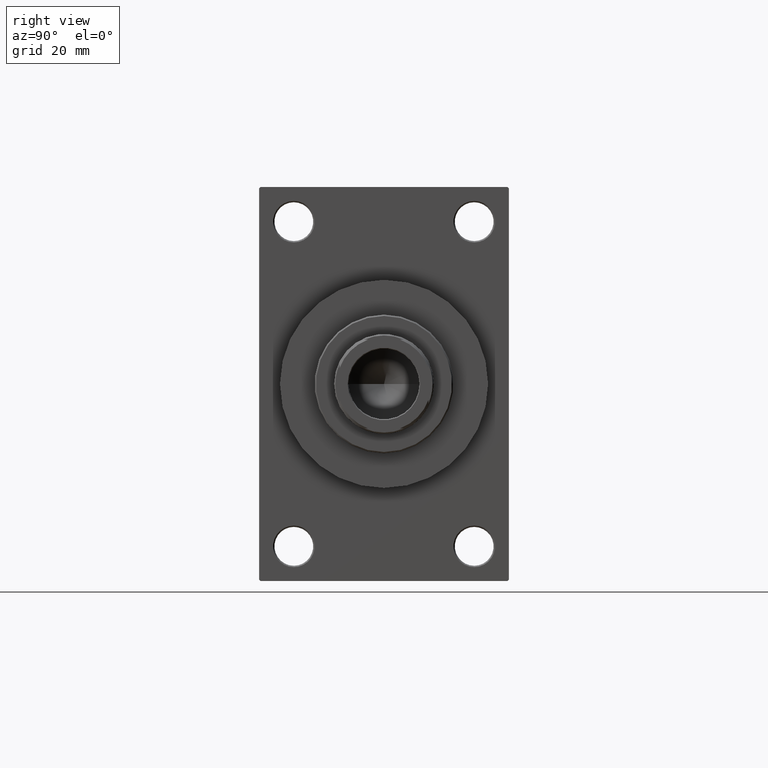
[diagram: clean part render]
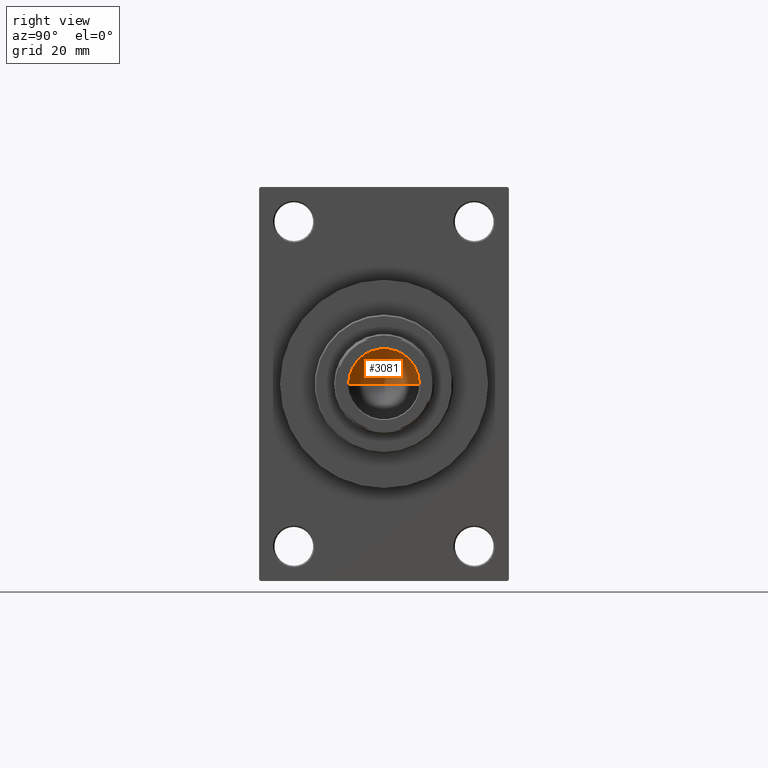
[diagram: same view with one face highlighted and labeled with its STEP entity id]
A machine part, right view. The second image highlights one B-rep face of the part: STEP entity #3081.
In plain terms, the highlighted conical surface has half-angle 59 deg.
Its self-contained STEP definition (entity closure, byte-faithful):
#3081 = ADVANCED_FACE ( 'NONE', ( #9977 ), #36785, .F. ) ;
#3415 = ORIENTED_EDGE ( 'NONE', *, *, #43468, .T. ) ;
#5251 = EDGE_CURVE ( 'NONE', #29894, #9873, #9367, .T. ) ;
#5435 = ORIENTED_EDGE ( 'NONE', *, *, #5251, .T. ) ;
#5481 = CARTESIAN_POINT ( 'NONE',  ( -12.74999999999998934, 1.561424668912873928E-15, 105.0000000000000284 ) ) ;
#6276 = CARTESIAN_POINT ( 'NONE',  ( -1.410643066818227497E-14, 0.000000000000000000, 97.33902710739862130 ) ) ;
#6325 = AXIS2_PLACEMENT_3D ( 'NONE', #42831, #35658, #17519 ) ;
#9367 = CIRCLE ( 'NONE', #6325, 12.74999999999998934 ) ;
#9873 = VERTEX_POINT ( 'NONE', #17779 ) ;
#9977 = FACE_OUTER_BOUND ( 'NONE', #18634, .T. ) ;
#10228 = LINE ( 'NONE', #39367, #26865 ) ;
#15682 = CARTESIAN_POINT ( 'NONE',  ( 12.74999999999998934, 0.000000000000000000, 105.0000000000000284 ) ) ;
#17393 = DIRECTION ( 'NONE',  ( 1.000000000000000000, 0.000000000000000000, 0.000000000000000000 ) ) ;
#17519 = DIRECTION ( 'NONE',  ( 1.000000000000000000, 0.000000000000000000, 0.000000000000000000 ) ) ;
#17779 = CARTESIAN_POINT ( 'NONE',  ( 12.74999999999998934, 0.000000000000000000, 105.0000000000000284 ) ) ;
#18634 = EDGE_LOOP ( 'NONE', ( #27251, #3415, #5435 ) ) ;
#20769 = AXIS2_PLACEMENT_3D ( 'NONE', #24562, #38654, #17393 ) ;
#23339 = DIRECTION ( 'NONE',  ( 0.8571673007021117785, 0.000000000000000000, 0.5150380749100550437 ) ) ;
#24562 = CARTESIAN_POINT ( 'NONE',  ( 0.000000000000000000, 0.000000000000000000, 105.0000000000000284 ) ) ;
#26865 = VECTOR ( 'NONE', #32207, 1000.000000000000000 ) ;
#27251 = ORIENTED_EDGE ( 'NONE', *, *, #34027, .F. ) ;
#29894 = VERTEX_POINT ( 'NONE', #5481 ) ;
#32207 = DIRECTION ( 'NONE',  ( -0.8571673007021117785, 1.049727191138617956E-16, 0.5150380749100550437 ) ) ;
#32438 = VERTEX_POINT ( 'NONE', #6276 ) ;
#34027 = EDGE_CURVE ( 'NONE', #32438, #9873, #45763, .T. ) ;
#35658 = DIRECTION ( 'NONE',  ( -0.000000000000000000, -0.000000000000000000, 1.000000000000000000 ) ) ;
#36785 = CONICAL_SURFACE ( 'NONE', #20769, 12.74999999999998934, 1.029744258676653423 ) ;
#38654 = DIRECTION ( 'NONE',  ( -0.000000000000000000, -0.000000000000000000, 1.000000000000000000 ) ) ;
#39367 = CARTESIAN_POINT ( 'NONE',  ( -12.74999999999998934, 1.561424668912873928E-15, 105.0000000000000284 ) ) ;
#42831 = CARTESIAN_POINT ( 'NONE',  ( 0.000000000000000000, 0.000000000000000000, 105.0000000000000284 ) ) ;
#43468 = EDGE_CURVE ( 'NONE', #32438, #29894, #10228, .T. ) ;
#45763 = LINE ( 'NONE', #15682, #47144 ) ;
#47144 = VECTOR ( 'NONE', #23339, 1000.000000000000000 ) ;